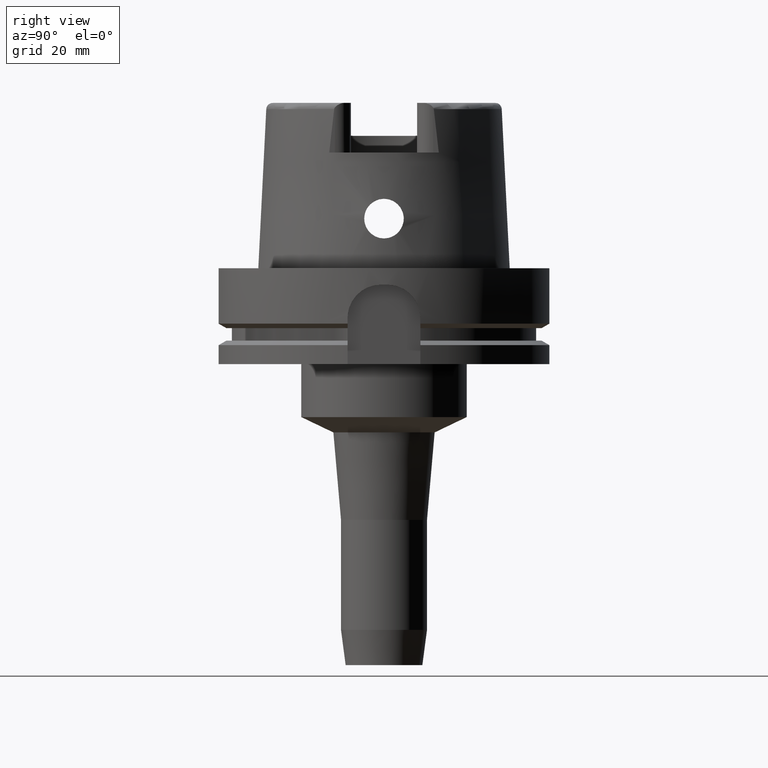
[diagram: clean part render]
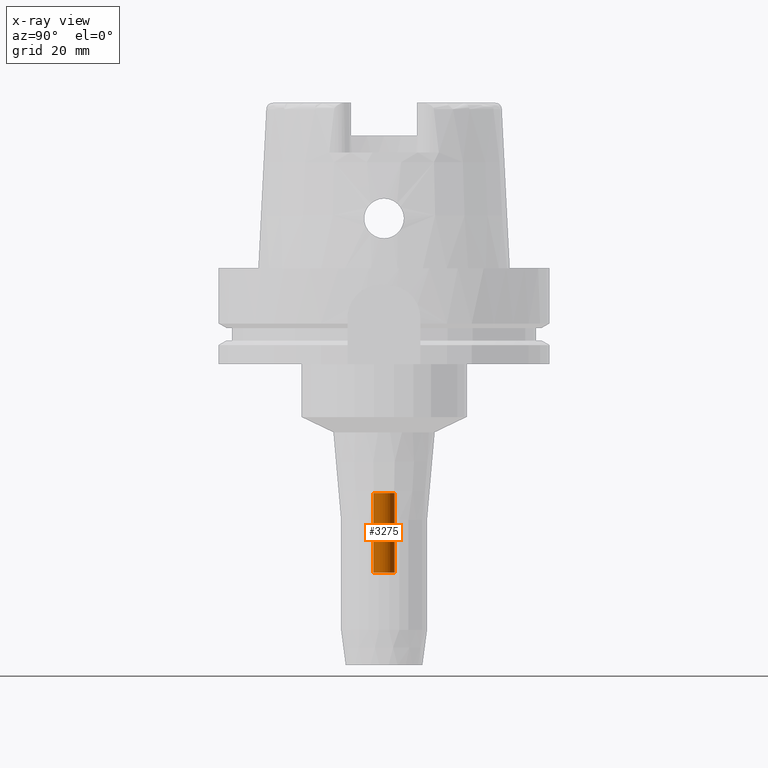
[diagram: x-ray — body ghosted, one internal face saturated and labeled with its STEP entity id]
A machine part, right view, then the same camera in x-ray: the body is ghosted and one INTERNAL B-rep face — a face not visible from any outside direction — is saturated and labeled: STEP entity #3275.
In plain terms, the highlighted cylindrical surface (edge-blend (fillet) strip) has radius 3.25 mm, axis along (0, 0, 1).
Its self-contained STEP definition (entity closure, byte-faithful):
#971=CARTESIAN_POINT('',(0.E0,0.E0,-6.8E1));
#972=DIRECTION('',(0.E0,0.E0,1.E0));
#973=DIRECTION('',(0.E0,-1.E0,0.E0));
#974=AXIS2_PLACEMENT_3D('',#971,#972,#973);
#1003=DIRECTION('',(0.E0,0.E0,1.E0));
#1004=VECTOR('',#1003,2.4E1);
#1005=CARTESIAN_POINT('',(0.E0,3.25E0,-9.2E1));
#1006=LINE('',#1005,#1004);
#1010=DIRECTION('',(0.E0,0.E0,1.E0));
#1011=VECTOR('',#1010,2.4E1);
#1012=CARTESIAN_POINT('',(0.E0,-3.25E0,-9.2E1));
#1013=LINE('',#1012,#1011);
#1025=CARTESIAN_POINT('',(0.E0,0.E0,-9.2E1));
#1026=DIRECTION('',(0.E0,0.E0,-1.E0));
#1027=DIRECTION('',(0.E0,1.E0,0.E0));
#1028=AXIS2_PLACEMENT_3D('',#1025,#1026,#1027);
#2394=CARTESIAN_POINT('',(0.E0,-3.25E0,-6.8E1));
#2395=CARTESIAN_POINT('',(0.E0,3.25E0,-6.8E1));
#2396=VERTEX_POINT('',#2394);
#2397=VERTEX_POINT('',#2395);
#2398=CARTESIAN_POINT('',(0.E0,3.25E0,-9.2E1));
#2399=VERTEX_POINT('',#2398);
#2400=CARTESIAN_POINT('',(0.E0,-3.25E0,-9.2E1));
#2401=VERTEX_POINT('',#2400);
#3261=CARTESIAN_POINT('',(0.E0,0.E0,-1.285E2));
#3262=DIRECTION('',(0.E0,0.E0,1.E0));
#3263=DIRECTION('',(0.E0,1.E0,0.E0));
#3264=AXIS2_PLACEMENT_3D('',#3261,#3262,#3263);
#3265=CYLINDRICAL_SURFACE('',#3264,3.25E0);
#3267=ORIENTED_EDGE('',*,*,#3266,.T.);
#3268=ORIENTED_EDGE('',*,*,#3250,.F.);
#3270=ORIENTED_EDGE('',*,*,#3269,.F.);
#3272=ORIENTED_EDGE('',*,*,#3271,.F.);
#3273=EDGE_LOOP('',(#3267,#3268,#3270,#3272));
#3274=FACE_OUTER_BOUND('',#3273,.F.);
#975=CIRCLE('',#974,3.25E0);
#1029=CIRCLE('',#1028,3.25E0);
#3250=EDGE_CURVE('',#2396,#2397,#975,.T.);
#3266=EDGE_CURVE('',#2399,#2397,#1006,.T.);
#3269=EDGE_CURVE('',#2401,#2396,#1013,.T.);
#3271=EDGE_CURVE('',#2399,#2401,#1029,.T.);
#3275=ADVANCED_FACE('',(#3274),#3265,.F.);